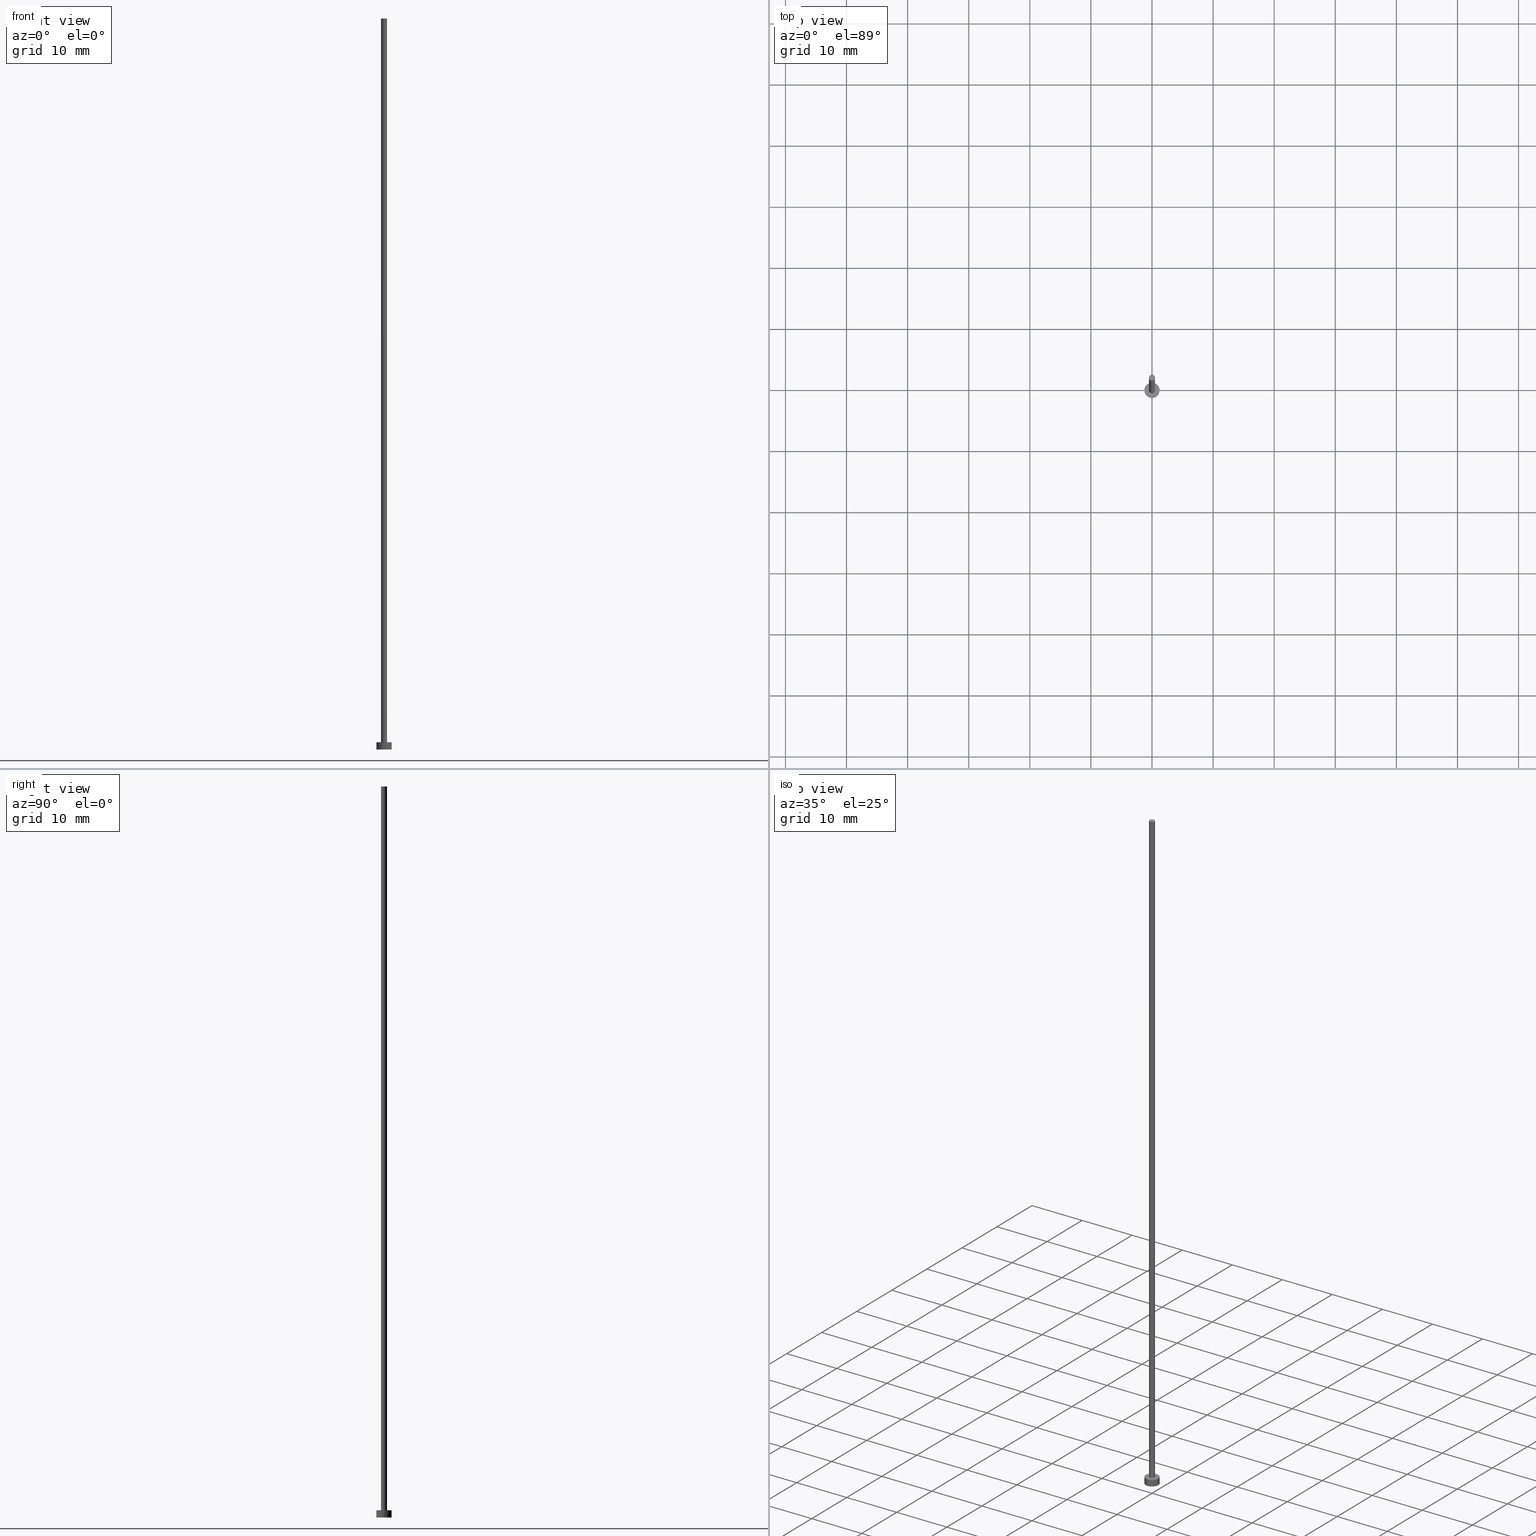
[diagram: canonical four-view strip — front | top / right | iso, engineering-drawing reading convention]
A machine part, canonical four-view strip (front | top / right | iso — engineering-drawing reading convention). The complete STEP part file that produces these views, byte-faithful:
ISO-10303-21;
HEADER;
FILE_DESCRIPTION (( 'STEP AP203' ),
    '1' );
FILE_NAME ('3f99.STEP',
    '2023-09-27T12:20:48',
    ( '' ),
    ( '' ),
    'SwSTEP 2.0',
    'SolidWorks 2019',
    '' );
FILE_SCHEMA (( 'CONFIG_CONTROL_DESIGN' ));
ENDSEC;

DATA;
#1 = FACE_OUTER_BOUND ( 'NONE', #136, .T. ) ;
#2 = EDGE_LOOP ( 'NONE', ( #150, #131 ) ) ;
#3 = DIRECTION ( 'NONE',  ( -0.000000000000000000, -0.000000000000000000, -1.000000000000000000 ) ) ;
#4 = PERSON_AND_ORGANIZATION ( #85, #179 ) ;
#5 = VERTEX_POINT ( 'NONE', #174 ) ;
#6 = MANIFOLD_SOLID_BREP ( 'P�idat vysunut�m3', #143 ) ;
#7 = CC_DESIGN_APPROVAL ( #139, ( #169 ) ) ;
#8 = APPLICATION_CONTEXT ( 'configuration controlled 3d designs of mechanical parts and assemblies' ) ;
#9 = ADVANCED_FACE ( 'NONE', ( #226 ), #53, .F. ) ;
#10 =( NAMED_UNIT ( * ) PLANE_ANGLE_UNIT ( ) SI_UNIT ( $, .RADIAN. ) );
#11 = VECTOR ( 'NONE', #116, 1000.000000000000000 ) ;
#12 = VERTEX_POINT ( 'NONE', #192 ) ;
#13 = DATE_AND_TIME ( #178, #167 ) ;
#14 = CC_DESIGN_DATE_AND_TIME_ASSIGNMENT ( #15, #104, ( #169 ) ) ;
#15 = DATE_AND_TIME ( #191, #229 ) ;
#16 = LOCAL_TIME ( 14, 20, 48.00000000000000000, #188 ) ;
#17 = DIRECTION ( 'NONE',  ( 1.000000000000000000, 0.000000000000000000, 0.000000000000000000 ) ) ;
#18 = APPROVAL_PERSON_ORGANIZATION ( #213, #27, #249 ) ;
#19 = FACE_OUTER_BOUND ( 'NONE', #123, .T. ) ;
#20 = DATE_AND_TIME ( #197, #48 ) ;
#21 = CARTESIAN_POINT ( 'NONE',  ( 0.000000000000000000, 0.000000000000000000, 119.6700000000000017 ) ) ;
#22 = DIRECTION ( 'NONE',  ( 0.000000000000000000, 0.000000000000000000, 1.000000000000000000 ) ) ;
#23 = ORIENTED_EDGE ( 'NONE', *, *, #76, .F. ) ;
#24 = AXIS2_PLACEMENT_3D ( 'NONE', #118, #250, #17 ) ;
#25 = DIRECTION ( 'NONE',  ( -0.000000000000000000, -0.000000000000000000, -1.000000000000000000 ) ) ;
#26 = SECURITY_CLASSIFICATION ( '', '', #247 ) ;
#27 = APPROVAL ( #196, 'NEUR�EN�' ) ;
#28 = DIRECTION ( 'NONE',  ( -1.000000000000000000, 0.000000000000000000, 0.000000000000000000 ) ) ;
#29 = PERSON_AND_ORGANIZATION_ROLE ( 'creator' ) ;
#30 = AXIS2_PLACEMENT_3D ( 'NONE', #142, #251, #164 ) ;
#31 =( NAMED_UNIT ( * ) SI_UNIT ( $, .STERADIAN. ) SOLID_ANGLE_UNIT ( ) );
#32 = CARTESIAN_POINT ( 'NONE',  ( 0.000000000000000000, 0.000000000000000000, 0.000000000000000000 ) ) ;
#33 = DIRECTION ( 'NONE',  ( 0.000000000000000000, 0.000000000000000000, 1.000000000000000000 ) ) ;
#34 = AXIS2_PLACEMENT_3D ( 'NONE', #52, #244, #111 ) ;
#35 = APPROVAL_ROLE ( '' ) ;
#36 = APPROVAL_STATUS ( 'not_yet_approved' ) ;
#37 = SHAPE_DEFINITION_REPRESENTATION ( #54, #98 ) ;
#38 = AXIS2_PLACEMENT_3D ( 'NONE', #68, #22, #66 ) ;
#39 = DIRECTION ( 'NONE',  ( 1.000000000000000000, 0.000000000000000000, 0.000000000000000000 ) ) ;
#40 = VERTEX_POINT ( 'NONE', #231 ) ;
#41 = CC_DESIGN_APPROVAL ( #100, ( #58 ) ) ;
#42 = CYLINDRICAL_SURFACE ( 'NONE', #194, 0.5000000000000000000 ) ;
#43 = PLANE ( 'NONE',  #120 ) ;
#44 = ORIENTED_EDGE ( 'NONE', *, *, #61, .T. ) ;
#45 = FACE_OUTER_BOUND ( 'NONE', #75, .T. ) ;
#46 = VERTEX_POINT ( 'NONE', #227 ) ;
#47 = DIRECTION ( 'NONE',  ( 1.000000000000000000, 0.000000000000000000, 0.000000000000000000 ) ) ;
#48 = LOCAL_TIME ( 14, 20, 48.00000000000000000, #65 ) ;
#49 = VERTEX_POINT ( 'NONE', #56 ) ;
#50 = PERSON_AND_ORGANIZATION_ROLE ( 'design_owner' ) ;
#51 = EDGE_CURVE ( 'NONE', #46, #40, #211, .T. ) ;
#52 = CARTESIAN_POINT ( 'NONE',  ( 0.000000000000000000, 0.000000000000000000, 0.000000000000000000 ) ) ;
#53 = PLANE ( 'NONE',  #81 ) ;
#54 = PRODUCT_DEFINITION_SHAPE ( 'NONE', 'NONE',  #169 ) ;
#55 = PERSON_AND_ORGANIZATION ( #85, #179 ) ;
#56 = CARTESIAN_POINT ( 'NONE',  ( 1.250000000000000000, 1.530808498934191571E-16, 1.199999999999999956 ) ) ;
#57 = CIRCLE ( 'NONE', #166, 1.250000000000000000 ) ;
#58 = PRODUCT_DEFINITION_FORMATION_WITH_SPECIFIED_SOURCE ( 'LIBOVOLN�', '', #106, .NOT_KNOWN. ) ;
#59 = CALENDAR_DATE ( 2023, 27, 9 ) ;
#60 = ORIENTED_EDGE ( 'NONE', *, *, #215, .T. ) ;
#61 = EDGE_CURVE ( 'NONE', #5, #69, #57, .T. ) ;
#62 = CARTESIAN_POINT ( 'NONE',  ( 1.250000000000000000, 1.530808498934191571E-16, 0.000000000000000000 ) ) ;
#63 = CIRCLE ( 'NONE', #24, 0.5000000000000000000 ) ;
#64 = DATE_TIME_ROLE ( 'classification_date' ) ;
#65 = COORDINATED_UNIVERSAL_TIME_OFFSET ( 1, 0, .AHEAD. ) ;
#66 = DIRECTION ( 'NONE',  ( 1.000000000000000000, 0.000000000000000000, 0.000000000000000000 ) ) ;
#67 = EDGE_CURVE ( 'NONE', #40, #12, #63, .T. ) ;
#68 = CARTESIAN_POINT ( 'NONE',  ( 0.000000000000000000, 0.000000000000000000, 119.6700000000000017 ) ) ;
#69 = VERTEX_POINT ( 'NONE', #62 ) ;
#70 = CIRCLE ( 'NONE', #228, 1.250000000000000000 ) ;
#71 = LINE ( 'NONE', #130, #86 ) ;
#72 = CARTESIAN_POINT ( 'NONE',  ( -1.250000000000000000, 0.000000000000000000, 1.199999999999999956 ) ) ;
#73 = ORIENTED_EDGE ( 'NONE', *, *, #119, .T. ) ;
#74 = APPROVAL_DATE_TIME ( #170, #139 ) ;
#75 = EDGE_LOOP ( 'NONE', ( #168, #152 ) ) ;
#76 = EDGE_CURVE ( 'NONE', #49, #69, #71, .T. ) ;
#77 = ORIENTED_EDGE ( 'NONE', *, *, #132, .F. ) ;
#78 = AXIS2_PLACEMENT_3D ( 'NONE', #163, #218, #147 ) ;
#79 = CARTESIAN_POINT ( 'NONE',  ( -0.5000000000000000000, 0.000000000000000000, 119.6700000000000017 ) ) ;
#80 = ORIENTED_EDGE ( 'NONE', *, *, #51, .F. ) ;
#81 = AXIS2_PLACEMENT_3D ( 'NONE', #172, #33, #135 ) ;
#82 = APPROVAL_PERSON_ORGANIZATION ( #233, #100, #35 ) ;
#83 = PERSON_AND_ORGANIZATION_ROLE ( 'classification_officer' ) ;
#84 = CC_DESIGN_PERSON_AND_ORGANIZATION_ASSIGNMENT ( #117, #193, ( #58 ) ) ;
#85 = PERSON ( 'NEUR�EN�', 'NEUR�EN�', 'NEUR�EN�', ('NEUR�EN�'), ('NEUR�EN�'), ('NEUR�EN�') ) ;
#86 = VECTOR ( 'NONE', #3, 1000.000000000000000 ) ;
#87 = DIRECTION ( 'NONE',  ( 0.000000000000000000, 0.000000000000000000, 1.000000000000000000 ) ) ;
#88 = ADVANCED_FACE ( 'NONE', ( #19 ), #128, .T. ) ;
#89 = DIRECTION ( 'NONE',  ( 0.000000000000000000, 0.000000000000000000, 1.000000000000000000 ) ) ;
#90 = ORIENTED_EDGE ( 'NONE', *, *, #200, .F. ) ;
#91 = CYLINDRICAL_SURFACE ( 'NONE', #101, 1.250000000000000000 ) ;
#92 = AXIS2_PLACEMENT_3D ( 'NONE', #181, #93, #159 ) ;
#93 = DIRECTION ( 'NONE',  ( 0.000000000000000000, 0.000000000000000000, 1.000000000000000000 ) ) ;
#94 = LINE ( 'NONE', #219, #199 ) ;
#95 =( GEOMETRIC_REPRESENTATION_CONTEXT ( 3 ) GLOBAL_UNCERTAINTY_ASSIGNED_CONTEXT ( ( #153 ) ) GLOBAL_UNIT_ASSIGNED_CONTEXT ( ( #230, #10, #31 ) ) REPRESENTATION_CONTEXT ( 'NONE', 'WORKASPACE' ) );
#96 = CC_DESIGN_SECURITY_CLASSIFICATION ( #26, ( #58 ) ) ;
#97 = EDGE_CURVE ( 'NONE', #145, #5, #220, .T. ) ;
#98 = ADVANCED_BREP_SHAPE_REPRESENTATION ( '3f99', ( #6, #34 ), #95 ) ;
#99 = DIRECTION ( 'NONE',  ( 1.000000000000000000, 0.000000000000000000, 0.000000000000000000 ) ) ;
#100 = APPROVAL ( #36, 'NEUR�EN�' ) ;
#101 = AXIS2_PLACEMENT_3D ( 'NONE', #207, #25, #28 ) ;
#102 = ORIENTED_EDGE ( 'NONE', *, *, #51, .T. ) ;
#103 = APPROVAL_DATE_TIME ( #20, #27 ) ;
#104 = DATE_TIME_ROLE ( 'creation_date' ) ;
#105 = CARTESIAN_POINT ( 'NONE',  ( 0.000000000000000000, 0.000000000000000000, 0.000000000000000000 ) ) ;
#106 = PRODUCT ( '3f99', '3f99', '', ( #149 ) ) ;
#107 = DIRECTION ( 'NONE',  ( -1.000000000000000000, 0.000000000000000000, 0.000000000000000000 ) ) ;
#108 = ORIENTED_EDGE ( 'NONE', *, *, #157, .T. ) ;
#109 = AXIS2_PLACEMENT_3D ( 'NONE', #105, #252, #201 ) ;
#110 = CARTESIAN_POINT ( 'NONE',  ( 0.000000000000000000, 0.000000000000000000, 1.199999999999999956 ) ) ;
#111 = DIRECTION ( 'NONE',  ( 1.000000000000000000, 0.000000000000000000, 0.000000000000000000 ) ) ;
#112 = DIRECTION ( 'NONE',  ( 0.000000000000000000, 0.000000000000000000, 1.000000000000000000 ) ) ;
#113 = EDGE_LOOP ( 'NONE', ( #23, #203, #240, #44 ) ) ;
#114 = COORDINATED_UNIVERSAL_TIME_OFFSET ( 1, 0, .AHEAD. ) ;
#115 = DIRECTION ( 'NONE',  ( 0.000000000000000000, 0.000000000000000000, 1.000000000000000000 ) ) ;
#116 = DIRECTION ( 'NONE',  ( -0.000000000000000000, -0.000000000000000000, -1.000000000000000000 ) ) ;
#117 = PERSON_AND_ORGANIZATION ( #85, #179 ) ;
#118 = CARTESIAN_POINT ( 'NONE',  ( 0.000000000000000000, 0.000000000000000000, 1.199999999999999956 ) ) ;
#119 = EDGE_CURVE ( 'NONE', #46, #248, #173, .T. ) ;
#120 = AXIS2_PLACEMENT_3D ( 'NONE', #122, #205, #235 ) ;
#121 = LOCAL_TIME ( 14, 20, 48.00000000000000000, #124 ) ;
#122 = CARTESIAN_POINT ( 'NONE',  ( 0.000000000000000000, 0.000000000000000000, 1.199999999999999956 ) ) ;
#123 = EDGE_LOOP ( 'NONE', ( #243, #151, #102, #253 ) ) ;
#124 = COORDINATED_UNIVERSAL_TIME_OFFSET ( 1, 0, .AHEAD. ) ;
#125 = CARTESIAN_POINT ( 'NONE',  ( 0.000000000000000000, 0.000000000000000000, 119.6700000000000017 ) ) ;
#126 = ADVANCED_FACE ( 'NONE', ( #1 ), #144, .T. ) ;
#127 = DIRECTION ( 'NONE',  ( 1.000000000000000000, 0.000000000000000000, 0.000000000000000000 ) ) ;
#128 = CYLINDRICAL_SURFACE ( 'NONE', #30, 0.5000000000000000000 ) ;
#129 = CIRCLE ( 'NONE', #154, 0.5000000000000000000 ) ;
#130 = CARTESIAN_POINT ( 'NONE',  ( 1.250000000000000000, 1.530808498934191571E-16, 1.199999999999999956 ) ) ;
#131 = ORIENTED_EDGE ( 'NONE', *, *, #215, .F. ) ;
#132 = EDGE_CURVE ( 'NONE', #49, #145, #202, .T. ) ;
#133 = ORIENTED_EDGE ( 'NONE', *, *, #200, .T. ) ;
#134 = APPROVAL_STATUS ( 'not_yet_approved' ) ;
#135 = DIRECTION ( 'NONE',  ( 1.000000000000000000, 0.000000000000000000, -0.000000000000000000 ) ) ;
#136 = EDGE_LOOP ( 'NONE', ( #73, #133 ) ) ;
#137 = PERSON_AND_ORGANIZATION ( #85, #179 ) ;
#138 = COORDINATED_UNIVERSAL_TIME_OFFSET ( 1, 0, .AHEAD. ) ;
#139 = APPROVAL ( #134, 'NEUR�EN�' ) ;
#140 = ADVANCED_FACE ( 'NONE', ( #160 ), #91, .T. ) ;
#141 = FACE_OUTER_BOUND ( 'NONE', #222, .T. ) ;
#142 = CARTESIAN_POINT ( 'NONE',  ( 0.000000000000000000, 0.000000000000000000, 119.6700000000000017 ) ) ;
#143 = CLOSED_SHELL ( 'NONE', ( #245, #206, #140, #186, #9, #88, #126 ) ) ;
#144 = PLANE ( 'NONE',  #185 ) ;
#145 = VERTEX_POINT ( 'NONE', #204 ) ;
#146 = DIRECTION ( 'NONE',  ( 0.000000000000000000, 0.000000000000000000, 1.000000000000000000 ) ) ;
#147 = DIRECTION ( 'NONE',  ( -1.000000000000000000, 0.000000000000000000, 0.000000000000000000 ) ) ;
#148 = CC_DESIGN_PERSON_AND_ORGANIZATION_ASSIGNMENT ( #176, #83, ( #26 ) ) ;
#149 = MECHANICAL_CONTEXT ( 'NONE', #216, 'mechanical' ) ;
#150 = ORIENTED_EDGE ( 'NONE', *, *, #67, .F. ) ;
#151 = ORIENTED_EDGE ( 'NONE', *, *, #119, .F. ) ;
#152 = ORIENTED_EDGE ( 'NONE', *, *, #132, .T. ) ;
#153 = UNCERTAINTY_MEASURE_WITH_UNIT (LENGTH_MEASURE( 1.000000000000000082E-05 ), #230, 'distance_accuracy_value', 'NONE');
#154 = AXIS2_PLACEMENT_3D ( 'NONE', #183, #146, #47 ) ;
#155 = EDGE_LOOP ( 'NONE', ( #90, #108, #60, #80 ) ) ;
#156 = DATE_AND_TIME ( #59, #121 ) ;
#157 = EDGE_CURVE ( 'NONE', #248, #12, #94, .T. ) ;
#158 = APPROVAL_DATE_TIME ( #156, #100 ) ;
#159 = DIRECTION ( 'NONE',  ( 1.000000000000000000, 0.000000000000000000, 0.000000000000000000 ) ) ;
#160 = FACE_OUTER_BOUND ( 'NONE', #113, .T. ) ;
#161 = ORIENTED_EDGE ( 'NONE', *, *, #76, .T. ) ;
#162 = DIRECTION ( 'NONE',  ( -0.000000000000000000, -0.000000000000000000, -1.000000000000000000 ) ) ;
#163 = CARTESIAN_POINT ( 'NONE',  ( 0.000000000000000000, 0.000000000000000000, 1.199999999999999956 ) ) ;
#164 = DIRECTION ( 'NONE',  ( -1.000000000000000000, 0.000000000000000000, 0.000000000000000000 ) ) ;
#165 = ORIENTED_EDGE ( 'NONE', *, *, #234, .T. ) ;
#166 = AXIS2_PLACEMENT_3D ( 'NONE', #32, #115, #99 ) ;
#167 = LOCAL_TIME ( 14, 20, 48.00000000000000000, #138 ) ;
#168 = ORIENTED_EDGE ( 'NONE', *, *, #175, .T. ) ;
#169 = PRODUCT_DEFINITION ( 'NEZN�M�', '', #58, #225 ) ;
#170 = DATE_AND_TIME ( #242, #16 ) ;
#171 = APPROVAL_ROLE ( '' ) ;
#172 = CARTESIAN_POINT ( 'NONE',  ( 0.000000000000000000, 0.000000000000000000, 0.000000000000000000 ) ) ;
#173 = CIRCLE ( 'NONE', #177, 0.5000000000000000000 ) ;
#174 = CARTESIAN_POINT ( 'NONE',  ( -1.250000000000000000, 0.000000000000000000, 0.000000000000000000 ) ) ;
#175 = EDGE_CURVE ( 'NONE', #145, #49, #70, .T. ) ;
#176 = PERSON_AND_ORGANIZATION ( #85, #179 ) ;
#177 = AXIS2_PLACEMENT_3D ( 'NONE', #125, #89, #127 ) ;
#178 = CALENDAR_DATE ( 2023, 27, 9 ) ;
#179 = ORGANIZATION ( 'NEUR�EN�', 'NEUR�EN�', '' ) ;
#180 = CC_DESIGN_APPROVAL ( #27, ( #26 ) ) ;
#181 = CARTESIAN_POINT ( 'NONE',  ( 0.000000000000000000, 0.000000000000000000, 1.199999999999999956 ) ) ;
#182 = DIRECTION ( 'NONE',  ( -0.000000000000000000, -0.000000000000000000, -1.000000000000000000 ) ) ;
#183 = CARTESIAN_POINT ( 'NONE',  ( 0.000000000000000000, 0.000000000000000000, 1.199999999999999956 ) ) ;
#184 = ORIENTED_EDGE ( 'NONE', *, *, #234, .F. ) ;
#185 = AXIS2_PLACEMENT_3D ( 'NONE', #209, #87, #223 ) ;
#186 = ADVANCED_FACE ( 'NONE', ( #255, #45 ), #43, .T. ) ;
#187 = DIRECTION ( 'NONE',  ( -0.000000000000000000, -0.000000000000000000, -1.000000000000000000 ) ) ;
#188 = COORDINATED_UNIVERSAL_TIME_OFFSET ( 1, 0, .AHEAD. ) ;
#189 = APPLICATION_PROTOCOL_DEFINITION ( 'international standard', 'config_control_design', 1994, #216 ) ;
#190 = ORIENTED_EDGE ( 'NONE', *, *, #61, .F. ) ;
#191 = CALENDAR_DATE ( 2023, 27, 9 ) ;
#192 = CARTESIAN_POINT ( 'NONE',  ( 0.5000000000000000000, 6.123233995736766036E-17, 1.199999999999999956 ) ) ;
#193 = PERSON_AND_ORGANIZATION_ROLE ( 'design_supplier' ) ;
#194 = AXIS2_PLACEMENT_3D ( 'NONE', #21, #187, #107 ) ;
#195 = ORIENTED_EDGE ( 'NONE', *, *, #97, .F. ) ;
#196 = APPROVAL_STATUS ( 'not_yet_approved' ) ;
#197 = CALENDAR_DATE ( 2023, 27, 9 ) ;
#198 = CC_DESIGN_PERSON_AND_ORGANIZATION_ASSIGNMENT ( #137, #232, ( #58 ) ) ;
#199 = VECTOR ( 'NONE', #162, 1000.000000000000000 ) ;
#200 = EDGE_CURVE ( 'NONE', #248, #46, #208, .T. ) ;
#201 = DIRECTION ( 'NONE',  ( 1.000000000000000000, 0.000000000000000000, 0.000000000000000000 ) ) ;
#202 = CIRCLE ( 'NONE', #92, 1.250000000000000000 ) ;
#203 = ORIENTED_EDGE ( 'NONE', *, *, #175, .F. ) ;
#204 = CARTESIAN_POINT ( 'NONE',  ( -1.250000000000000000, 0.000000000000000000, 1.199999999999999956 ) ) ;
#205 = DIRECTION ( 'NONE',  ( 0.000000000000000000, 0.000000000000000000, 1.000000000000000000 ) ) ;
#206 = ADVANCED_FACE ( 'NONE', ( #141 ), #238, .T. ) ;
#207 = CARTESIAN_POINT ( 'NONE',  ( 0.000000000000000000, 0.000000000000000000, 1.199999999999999956 ) ) ;
#208 = CIRCLE ( 'NONE', #38, 0.5000000000000000000 ) ;
#209 = CARTESIAN_POINT ( 'NONE',  ( 0.000000000000000000, 0.000000000000000000, 119.6700000000000017 ) ) ;
#210 = PERSON_AND_ORGANIZATION ( #85, #179 ) ;
#211 = LINE ( 'NONE', #79, #11 ) ;
#212 = APPLICATION_PROTOCOL_DEFINITION ( 'international standard', 'config_control_design', 1994, #8 ) ;
#213 = PERSON_AND_ORGANIZATION ( #85, #179 ) ;
#214 = APPROVAL_PERSON_ORGANIZATION ( #4, #139, #171 ) ;
#215 = EDGE_CURVE ( 'NONE', #12, #40, #129, .T. ) ;
#216 = APPLICATION_CONTEXT ( 'configuration controlled 3d designs of mechanical parts and assemblies' ) ;
#217 = CIRCLE ( 'NONE', #109, 1.250000000000000000 ) ;
#218 = DIRECTION ( 'NONE',  ( -0.000000000000000000, -0.000000000000000000, -1.000000000000000000 ) ) ;
#219 = CARTESIAN_POINT ( 'NONE',  ( 0.5000000000000000000, 6.123233995736766036E-17, 119.6700000000000017 ) ) ;
#220 = LINE ( 'NONE', #72, #246 ) ;
#221 = CC_DESIGN_DATE_AND_TIME_ASSIGNMENT ( #13, #64, ( #26 ) ) ;
#222 = EDGE_LOOP ( 'NONE', ( #77, #161, #165, #195 ) ) ;
#223 = DIRECTION ( 'NONE',  ( 1.000000000000000000, 0.000000000000000000, -0.000000000000000000 ) ) ;
#224 = EDGE_LOOP ( 'NONE', ( #190, #184 ) ) ;
#225 = DESIGN_CONTEXT ( 'detailed design', #8, 'design' ) ;
#226 = FACE_OUTER_BOUND ( 'NONE', #224, .T. ) ;
#227 = CARTESIAN_POINT ( 'NONE',  ( -0.5000000000000000000, 0.000000000000000000, 119.6700000000000017 ) ) ;
#228 = AXIS2_PLACEMENT_3D ( 'NONE', #110, #112, #39 ) ;
#229 = LOCAL_TIME ( 14, 20, 48.00000000000000000, #114 ) ;
#230 =( LENGTH_UNIT ( ) NAMED_UNIT ( * ) SI_UNIT ( .MILLI., .METRE. ) );
#231 = CARTESIAN_POINT ( 'NONE',  ( -0.5000000000000000000, 0.000000000000000000, 1.199999999999999956 ) ) ;
#232 = PERSON_AND_ORGANIZATION_ROLE ( 'creator' ) ;
#233 = PERSON_AND_ORGANIZATION ( #85, #179 ) ;
#234 = EDGE_CURVE ( 'NONE', #69, #5, #217, .T. ) ;
#235 = DIRECTION ( 'NONE',  ( 1.000000000000000000, 0.000000000000000000, -0.000000000000000000 ) ) ;
#236 = FACE_OUTER_BOUND ( 'NONE', #155, .T. ) ;
#237 = CC_DESIGN_PERSON_AND_ORGANIZATION_ASSIGNMENT ( #210, #29, ( #169 ) ) ;
#238 = CYLINDRICAL_SURFACE ( 'NONE', #78, 1.250000000000000000 ) ;
#239 = CARTESIAN_POINT ( 'NONE',  ( 0.5000000000000000000, 6.123233995736766036E-17, 119.6700000000000017 ) ) ;
#240 = ORIENTED_EDGE ( 'NONE', *, *, #97, .T. ) ;
#241 = PRODUCT_RELATED_PRODUCT_CATEGORY ( 'detail', '', ( #106 ) ) ;
#242 = CALENDAR_DATE ( 2023, 27, 9 ) ;
#243 = ORIENTED_EDGE ( 'NONE', *, *, #157, .F. ) ;
#244 = DIRECTION ( 'NONE',  ( 0.000000000000000000, 0.000000000000000000, 1.000000000000000000 ) ) ;
#245 = ADVANCED_FACE ( 'NONE', ( #236 ), #42, .T. ) ;
#246 = VECTOR ( 'NONE', #182, 1000.000000000000000 ) ;
#247 = SECURITY_CLASSIFICATION_LEVEL ( 'unclassified' ) ;
#248 = VERTEX_POINT ( 'NONE', #239 ) ;
#249 = APPROVAL_ROLE ( '' ) ;
#250 = DIRECTION ( 'NONE',  ( 0.000000000000000000, 0.000000000000000000, 1.000000000000000000 ) ) ;
#251 = DIRECTION ( 'NONE',  ( -0.000000000000000000, -0.000000000000000000, -1.000000000000000000 ) ) ;
#252 = DIRECTION ( 'NONE',  ( 0.000000000000000000, 0.000000000000000000, 1.000000000000000000 ) ) ;
#253 = ORIENTED_EDGE ( 'NONE', *, *, #67, .T. ) ;
#254 = CC_DESIGN_PERSON_AND_ORGANIZATION_ASSIGNMENT ( #55, #50, ( #106 ) ) ;
#255 = FACE_BOUND ( 'NONE', #2, .T. ) ;
ENDSEC;
END-ISO-10303-21;
